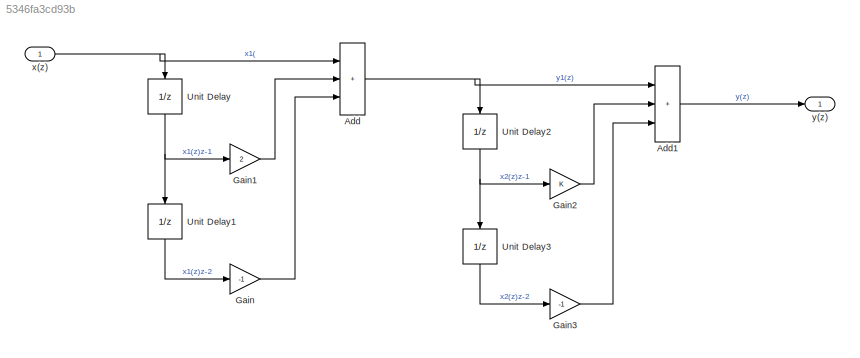
MODEL slx_5346fa3cd93b
KIND model
CONFIG AbsTol = auto
CONFIG EnableMultiTasking = off
CONFIG FixedStep = 0.06
CONFIG MaxStep = auto
CONFIG MinStep = auto
CONFIG RelTol = 1e-3
CONFIG SampleTimeConstraint = Unconstrained
CONFIG SolverName = FixedStepAuto
CONFIG StartTime = 0.0
CONFIG StopTime = 3.0
BLOCK [Sum] Add
  IconShape = rectangular
  Inputs = +++
  Ports = [3, 1]
BLOCK [Sum] Add1
  IconShape = rectangular
  Inputs = +++
  Ports = [3, 1]
BLOCK [Gain] Gain
  Gain = -1
BLOCK [Gain] Gain1
  Gain = 2
BLOCK [Gain] Gain2
BLOCK [Gain] Gain3
  Gain = -1
BLOCK [UnitDelay] Unit Delay
  HasFrameUpgradeWarning = on
  NameLocation = left
  SampleTime = -1
BLOCK [UnitDelay] Unit Delay1
  HasFrameUpgradeWarning = on
  NameLocation = left
  SampleTime = -1
BLOCK [UnitDelay] Unit Delay2
  HasFrameUpgradeWarning = on
  NameLocation = left
  SampleTime = -1
BLOCK [UnitDelay] Unit Delay3
  HasFrameUpgradeWarning = on
  NameLocation = left
  SampleTime = -1
BLOCK [Inport] x(z)
  OutDataTypeStr = double
  PortDimensions = 1
  SampleTime = [0.059999999999999998,0]
  SamplingMode = Sample based
  SignalType = real
BLOCK [Outport] y(z)
  OutDataTypeStr = double
  PortDimensions = 1
  SampleTime = [0.059999999999999998,0]
  SamplingMode = Sample based
  SignalType = real
LINE Add1:1 -> y(z):1
NET Add:1 -> Add1:1, Unit Delay2:1
LINE Gain1:1 -> Add:2
LINE Gain2:1 -> Add1:2
LINE Gain3:1 -> Add1:3
LINE Gain:1 -> Add:3
LINE Unit Delay1:1 -> Gain:1
NET Unit Delay2:1 -> Gain2:1, Unit Delay3:1
LINE Unit Delay3:1 -> Gain3:1
NET Unit Delay:1 -> Gain1:1, Unit Delay1:1
NET x(z):1 -> Add:1, Unit Delay:1
note: NET lines group one-source signal fan-out (src -> all destinations, sorted); 1:1 wires keep LINE
